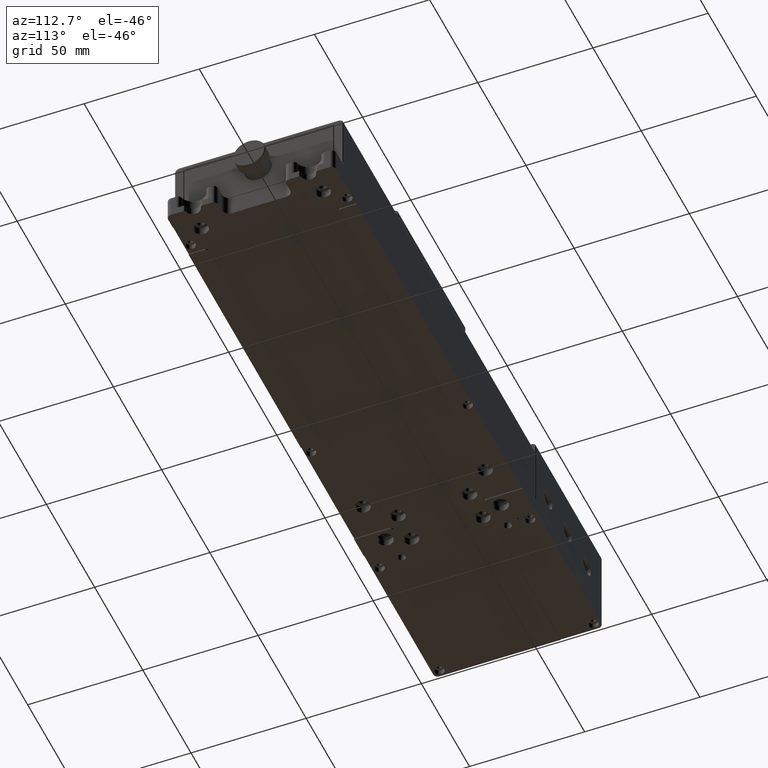
[diagram: clean part render]
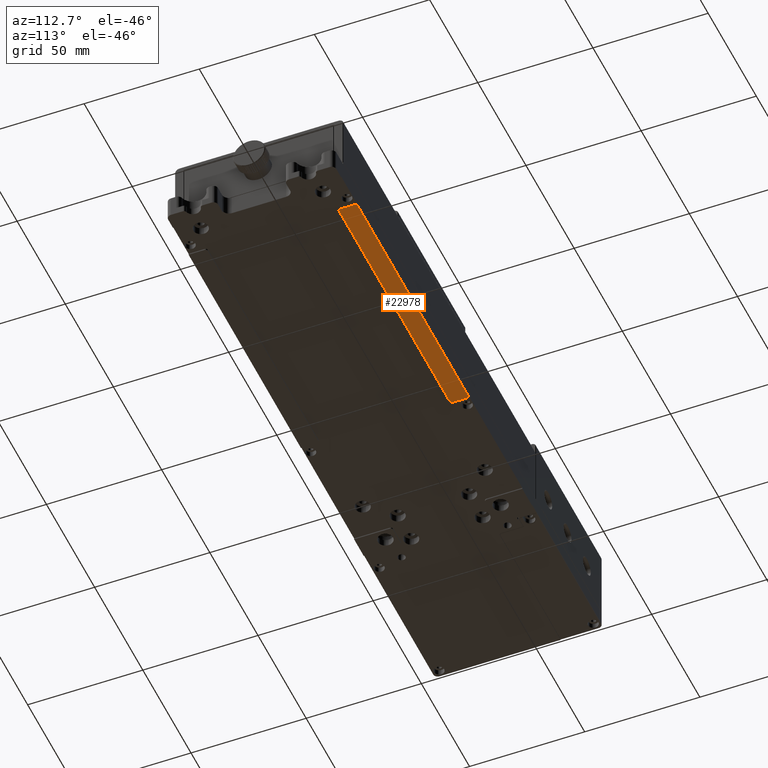
[diagram: same view with one face highlighted and labeled with its STEP entity id]
A machine part, auxiliary view. The second image highlights one B-rep face of the part: STEP entity #22978.
In plain terms, the highlighted planar face has unit normal (0, 0, -1).
Its self-contained STEP definition (entity closure, byte-faithful):
#2973 = VERTEX_POINT ( 'NONE', #47731 ) ;
#4065 = DIRECTION ( 'NONE',  ( -1.000000000000000000, 0.000000000000000000, 0.000000000000000000 ) ) ;
#4127 = CARTESIAN_POINT ( 'NONE',  ( 102.3747400185976062, 27.53080254974720020, -5.500000000000000000 ) ) ;
#5712 = EDGE_CURVE ( 'NONE', #34888, #2973, #34640, .T. ) ;
#7029 = CARTESIAN_POINT ( 'NONE',  ( 101.3747400185976062, 19.53080254974720020, -5.500000000000000000 ) ) ;
#8451 = VERTEX_POINT ( 'NONE', #4127 ) ;
#8620 = CARTESIAN_POINT ( 'NONE',  ( -153.4252599814024904, 26.03080254974719665, -5.500000000000000000 ) ) ;
#8839 = CARTESIAN_POINT ( 'NONE',  ( 102.3747400185976062, 27.53080254974720020, -5.500000000000000000 ) ) ;
#9032 = EDGE_LOOP ( 'NONE', ( #11799, #26104, #10784, #13507, #30515, #25883 ) ) ;
#9117 = DIRECTION ( 'NONE',  ( -1.000000000000000000, 0.000000000000000000, 0.000000000000000000 ) ) ;
#9964 = VECTOR ( 'NONE', #69146, 1000.000000000000000 ) ;
#10784 = ORIENTED_EDGE ( 'NONE', *, *, #5712, .T. ) ;
#11799 = ORIENTED_EDGE ( 'NONE', *, *, #41019, .T. ) ;
#13507 = ORIENTED_EDGE ( 'NONE', *, *, #39519, .T. ) ;
#16828 = EDGE_CURVE ( 'NONE', #8451, #61867, #59004, .T. ) ;
#16946 = CIRCLE ( 'NONE', #36527, 1.000000000000000888 ) ;
#20126 = CARTESIAN_POINT ( 'NONE',  ( -14.22525998140234016, 20.53080254974720020, -5.500000000000000000 ) ) ;
#22978 = ADVANCED_FACE ( 'NONE', ( #58045 ), #30289, .T. ) ;
#24355 = VECTOR ( 'NONE', #62019, 1000.000000000000000 ) ;
#25883 = ORIENTED_EDGE ( 'NONE', *, *, #32923, .T. ) ;
#26104 = ORIENTED_EDGE ( 'NONE', *, *, #34098, .T. ) ;
#26298 = DIRECTION ( 'NONE',  ( 1.000000000000000000, 0.000000000000000000, 0.000000000000000000 ) ) ;
#26302 = AXIS2_PLACEMENT_3D ( 'NONE', #59274, #41975, #9117 ) ;
#30289 = PLANE ( 'NONE',  #57835 ) ;
#30515 = ORIENTED_EDGE ( 'NONE', *, *, #16828, .T. ) ;
#30643 = DIRECTION ( 'NONE',  ( 0.000000000000000000, 0.000000000000000000, -1.000000000000000000 ) ) ;
#31700 = LINE ( 'NONE', #42893, #47783 ) ;
#32923 = EDGE_CURVE ( 'NONE', #61867, #58213, #16946, .T. ) ;
#34098 = EDGE_CURVE ( 'NONE', #71149, #34888, #57364, .T. ) ;
#34640 = LINE ( 'NONE', #51554, #24355 ) ;
#34888 = VERTEX_POINT ( 'NONE', #20126 ) ;
#36527 = AXIS2_PLACEMENT_3D ( 'NONE', #70090, #63232, #4065 ) ;
#38909 = CARTESIAN_POINT ( 'NONE',  ( -13.22525998140233838, 19.53080254974720020, -5.500000000000000000 ) ) ;
#39519 = EDGE_CURVE ( 'NONE', #2973, #8451, #31700, .T. ) ;
#40237 = VECTOR ( 'NONE', #47823, 1000.000000000000000 ) ;
#41019 = EDGE_CURVE ( 'NONE', #58213, #71149, #47147, .T. ) ;
#41975 = DIRECTION ( 'NONE',  ( 0.000000000000000000, 0.000000000000000000, -1.000000000000000000 ) ) ;
#42893 = CARTESIAN_POINT ( 'NONE',  ( 102.3747400185976062, 27.53080254974720020, -5.500000000000000000 ) ) ;
#47147 = LINE ( 'NONE', #58685, #9964 ) ;
#47731 = CARTESIAN_POINT ( 'NONE',  ( -14.22525998140234016, 27.53080254974720020, -5.500000000000000000 ) ) ;
#47783 = VECTOR ( 'NONE', #26298, 1000.000000000000000 ) ;
#47823 = DIRECTION ( 'NONE',  ( 0.000000000000000000, -1.000000000000000000, 0.000000000000000000 ) ) ;
#51554 = CARTESIAN_POINT ( 'NONE',  ( -14.22525998140234016, 27.53080254974720020, -5.500000000000000000 ) ) ;
#52623 = DIRECTION ( 'NONE',  ( 0.000000000000000000, -1.000000000000000000, 0.000000000000000000 ) ) ;
#57364 = CIRCLE ( 'NONE', #26302, 0.9999999999999991118 ) ;
#57835 = AXIS2_PLACEMENT_3D ( 'NONE', #8620, #30643, #52623 ) ;
#58045 = FACE_OUTER_BOUND ( 'NONE', #9032, .T. ) ;
#58213 = VERTEX_POINT ( 'NONE', #7029 ) ;
#58685 = CARTESIAN_POINT ( 'NONE',  ( 102.3747400185976062, 19.53080254974720020, -5.500000000000000000 ) ) ;
#59004 = LINE ( 'NONE', #8839, #40237 ) ;
#59274 = CARTESIAN_POINT ( 'NONE',  ( -13.22525998140233838, 20.53080254974720020, -5.500000000000000000 ) ) ;
#60915 = CARTESIAN_POINT ( 'NONE',  ( 102.3747400185976062, 20.53080254974720020, -5.500000000000000000 ) ) ;
#61867 = VERTEX_POINT ( 'NONE', #60915 ) ;
#62019 = DIRECTION ( 'NONE',  ( 0.000000000000000000, 1.000000000000000000, 0.000000000000000000 ) ) ;
#63232 = DIRECTION ( 'NONE',  ( 0.000000000000000000, 0.000000000000000000, -1.000000000000000000 ) ) ;
#69146 = DIRECTION ( 'NONE',  ( -1.000000000000000000, -7.438779914137249619E-18, 0.000000000000000000 ) ) ;
#70090 = CARTESIAN_POINT ( 'NONE',  ( 101.3747400185976062, 20.53080254974720020, -5.500000000000000000 ) ) ;
#71149 = VERTEX_POINT ( 'NONE', #38909 ) ;